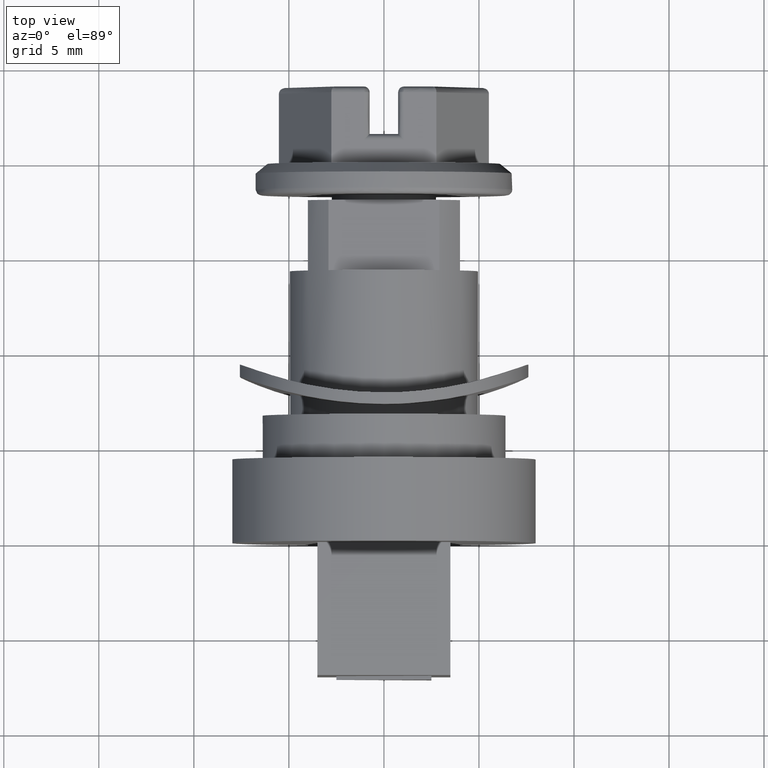
[diagram: clean part render]
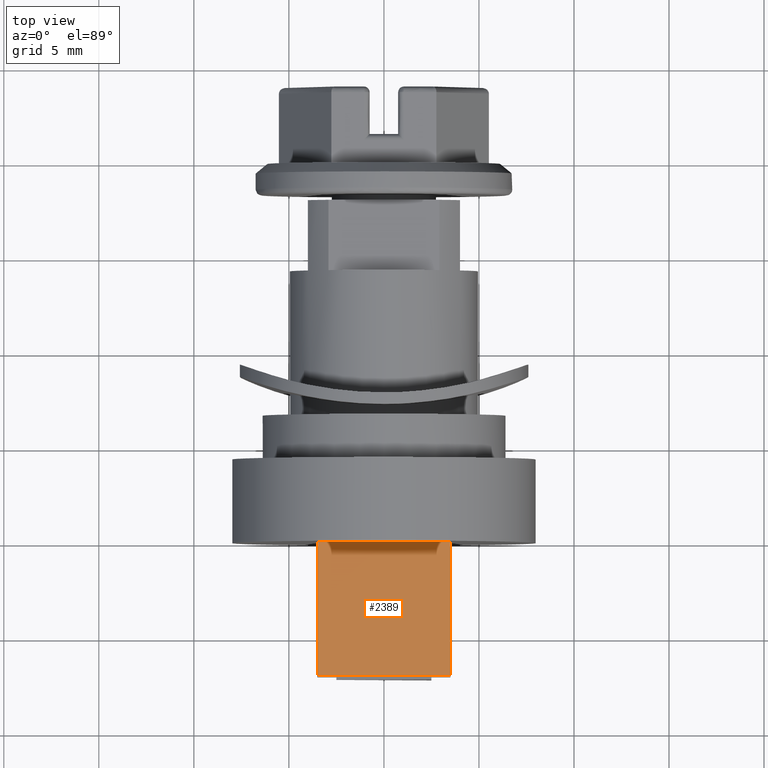
[diagram: same view with one face highlighted and labeled with its STEP entity id]
A machine part, top view. The second image highlights one B-rep face of the part: STEP entity #2389.
In plain terms, the highlighted face is a freeform B-spline surface patch.
Its self-contained STEP definition (entity closure, byte-faithful):
#2331=CARTESIAN_POINT('',(-3.500000166241080,0.0,3.500000166240995));
#2332=VERTEX_POINT('',#2331);
#2340=CARTESIAN_POINT('',(3.500000166241080,0.0,3.500000166240995));
#2341=VERTEX_POINT('',#2340);
#2342=CARTESIAN_POINT('',(3.500000166241080,0.0,3.500000166240995));
#2343=CARTESIAN_POINT('',(-3.500000166241080,0.0,3.500000166240995));
#2344=QUASI_UNIFORM_CURVE('',1,(#2342,#2343),.UNSPECIFIED.,.F.,.U.);
#2345=EDGE_CURVE('',#2341,#2332,#2344,.T.);
#2362=CARTESIAN_POINT('',(3.849650234992201,-7.349650532655155,3.500000166240995));
#2363=CARTESIAN_POINT('',(-3.849650360161961,-7.349650532655155,3.500000166240995));
#2364=CARTESIAN_POINT('',(3.849650234992201,0.349650200173103,3.500000166240995));
#2365=CARTESIAN_POINT('',(-3.849650360161961,0.349650200173103,3.500000166240995));
#2366=B_SPLINE_SURFACE_WITH_KNOTS('',1,1,((#2362,#2364),(#2363,#2365)),.UNSPECIFIED.,.F.,.F.,.U.,(2,2),(2,2),(0.0,7.699300595154161),(0.0,7.699300732828259),.UNSPECIFIED.);
#2367=ORIENTED_EDGE('',*,*,#2345,.T.);
#2368=CARTESIAN_POINT('',(-3.500000166241080,-7.000000332482050,3.500000166240995));
#2369=VERTEX_POINT('',#2368);
#2370=CARTESIAN_POINT('',(-3.500000166241080,-7.000000332482050,3.500000166240995));
#2371=CARTESIAN_POINT('',(-3.500000166241080,0.0,3.500000166240995));
#2372=QUASI_UNIFORM_CURVE('',1,(#2370,#2371),.UNSPECIFIED.,.F.,.U.);
#2373=EDGE_CURVE('',#2369,#2332,#2372,.T.);
#2374=ORIENTED_EDGE('',*,*,#2373,.F.);
#2375=CARTESIAN_POINT('',(3.500000166241080,-7.000000332482050,3.500000166240995));
#2376=VERTEX_POINT('',#2375);
#2377=CARTESIAN_POINT('',(3.500000166241080,-7.000000332482050,3.500000166240995));
#2378=CARTESIAN_POINT('',(-3.500000166241080,-7.000000332482050,3.500000166240995));
#2379=QUASI_UNIFORM_CURVE('',1,(#2377,#2378),.UNSPECIFIED.,.F.,.U.);
#2380=EDGE_CURVE('',#2376,#2369,#2379,.T.);
#2381=ORIENTED_EDGE('',*,*,#2380,.F.);
#2382=CARTESIAN_POINT('',(3.500000166241080,-7.000000332482050,3.500000166240995));
#2383=CARTESIAN_POINT('',(3.500000166241080,0.0,3.500000166240995));
#2384=QUASI_UNIFORM_CURVE('',1,(#2382,#2383),.UNSPECIFIED.,.F.,.U.);
#2385=EDGE_CURVE('',#2376,#2341,#2384,.T.);
#2386=ORIENTED_EDGE('',*,*,#2385,.T.);
#2387=EDGE_LOOP('',(#2367,#2374,#2381,#2386));
#2388=FACE_OUTER_BOUND('',#2387,.T.);
#2389=ADVANCED_FACE('',(#2388),#2366,.F.);